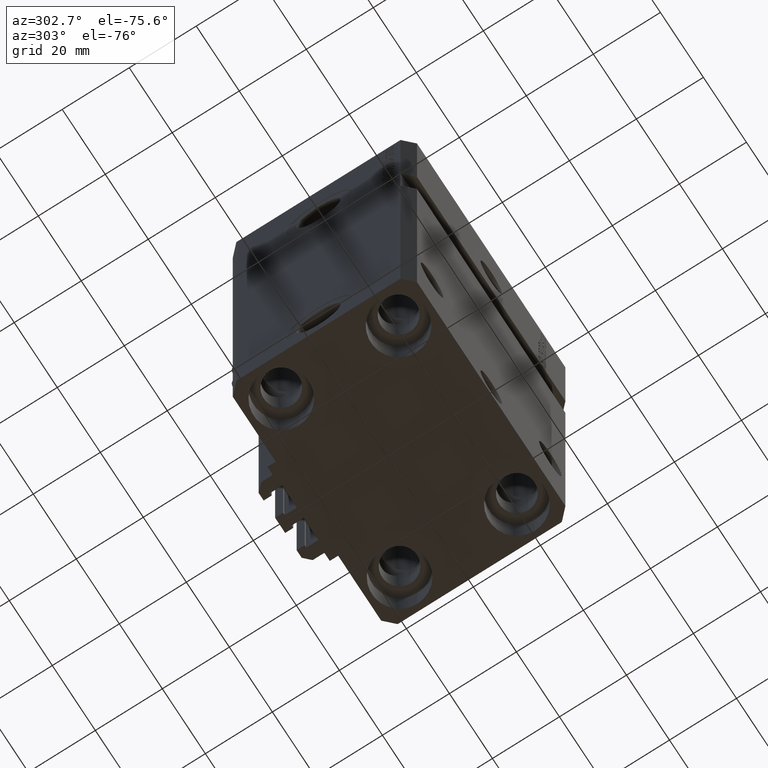
[diagram: clean part render]
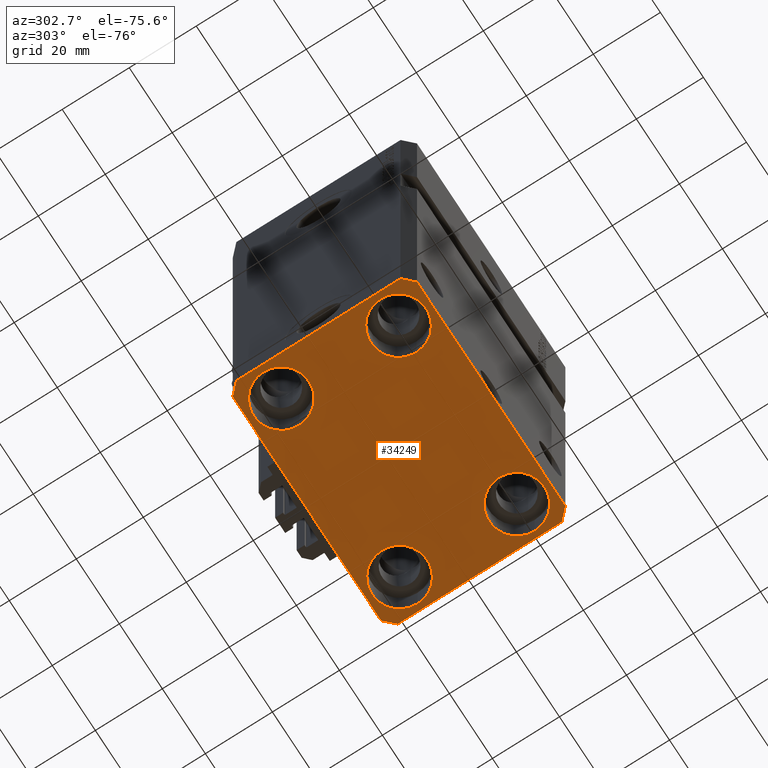
[diagram: same view with one face highlighted and labeled with its STEP entity id]
A machine part, auxiliary view. The second image highlights one B-rep face of the part: STEP entity #34249.
In plain terms, the highlighted planar face has unit normal (0, 0, 1).
Its self-contained STEP definition (entity closure, byte-faithful):
#521 = DIRECTION ( 'NONE',  ( 0.7071067811865483499, -0.7071067811865466846, 0.000000000000000000 ) ) ;
#713 = CARTESIAN_POINT ( 'NONE',  ( -35.75000000000000711, 17.50000000000000000, -140.0000000000000000 ) ) ;
#832 = CARTESIAN_POINT ( 'NONE',  ( 37.49999999999999289, -24.50000000000000000, -140.0000000000000000 ) ) ;
#2409 = ORIENTED_EDGE ( 'NONE', *, *, #21652, .T. ) ;
#2853 = DIRECTION ( 'NONE',  ( -0.000000000000000000, -0.000000000000000000, 1.000000000000000000 ) ) ;
#2880 = CARTESIAN_POINT ( 'NONE',  ( 34.50000000000056843, 27.50000000000000000, -140.0000000000000000 ) ) ;
#2974 = VECTOR ( 'NONE', #8332, 1000.000000000000000 ) ;
#3187 = AXIS2_PLACEMENT_3D ( 'NONE', #11316, #22224, #18583 ) ;
#4349 = AXIS2_PLACEMENT_3D ( 'NONE', #25385, #11084, #37488 ) ;
#4642 = CARTESIAN_POINT ( 'NONE',  ( -34.49999999999999289, 27.50000000000000000, -140.0000000000000000 ) ) ;
#5278 = ORIENTED_EDGE ( 'NONE', *, *, #11605, .T. ) ;
#5292 = VERTEX_POINT ( 'NONE', #22614 ) ;
#5302 = VERTEX_POINT ( 'NONE', #19915 ) ;
#6504 = ORIENTED_EDGE ( 'NONE', *, *, #16647, .T. ) ;
#6612 = VECTOR ( 'NONE', #27877, 1000.000000000000000 ) ;
#6691 = ORIENTED_EDGE ( 'NONE', *, *, #15108, .T. ) ;
#6996 = ORIENTED_EDGE ( 'NONE', *, *, #34841, .T. ) ;
#7282 = EDGE_CURVE ( 'NONE', #5292, #30397, #28578, .T. ) ;
#7935 = FACE_OUTER_BOUND ( 'NONE', #42834, .T. ) ;
#8150 = CARTESIAN_POINT ( 'NONE',  ( -37.49999999999999289, 24.50000000000000000, -140.0000000000000000 ) ) ;
#8332 = DIRECTION ( 'NONE',  ( 1.076236605503979380E-14, 1.000000000000000000, 0.000000000000000000 ) ) ;
#8588 = ORIENTED_EDGE ( 'NONE', *, *, #29916, .T. ) ;
#9039 = VECTOR ( 'NONE', #20889, 1000.000000000000000 ) ;
#9448 = LINE ( 'NONE', #2880, #27853 ) ;
#9471 = CARTESIAN_POINT ( 'NONE',  ( -27.50000000000000355, -17.50000000000000000, -140.0000000000000000 ) ) ;
#9500 = DIRECTION ( 'NONE',  ( 1.000000000000000000, 0.000000000000000000, 0.000000000000000000 ) ) ;
#9880 = CARTESIAN_POINT ( 'NONE',  ( 27.49999999999999645, 17.50000000000001066, -140.0000000000000000 ) ) ;
#10177 = DIRECTION ( 'NONE',  ( 1.000000000000000000, 0.000000000000000000, 0.000000000000000000 ) ) ;
#11084 = DIRECTION ( 'NONE',  ( -0.000000000000000000, -0.000000000000000000, 1.000000000000000000 ) ) ;
#11208 = CIRCLE ( 'NONE', #44469, 8.250000000000000000 ) ;
#11316 = CARTESIAN_POINT ( 'NONE',  ( 0.000000000000000000, 0.000000000000000000, -140.0000000000000000 ) ) ;
#11605 = EDGE_CURVE ( 'NONE', #23074, #40661, #39760, .T. ) ;
#11648 = CARTESIAN_POINT ( 'NONE',  ( -37.49999999999999289, -24.50000000000000000, -140.0000000000000000 ) ) ;
#13509 = AXIS2_PLACEMENT_3D ( 'NONE', #25976, #18457, #47525 ) ;
#13592 = VERTEX_POINT ( 'NONE', #4642 ) ;
#13652 = EDGE_LOOP ( 'NONE', ( #8588, #6996 ) ) ;
#13740 = AXIS2_PLACEMENT_3D ( 'NONE', #9471, #39017, #43364 ) ;
#14414 = CARTESIAN_POINT ( 'NONE',  ( 19.25000000000000000, -17.50000000000000000, -140.0000000000000000 ) ) ;
#14900 = ORIENTED_EDGE ( 'NONE', *, *, #32159, .F. ) ;
#15108 = EDGE_CURVE ( 'NONE', #46564, #47928, #29084, .T. ) ;
#15356 = CARTESIAN_POINT ( 'NONE',  ( 37.49999999999999289, -24.50000000000000000, -140.0000000000000000 ) ) ;
#15444 = FACE_BOUND ( 'NONE', #45085, .T. ) ;
#15772 = LINE ( 'NONE', #11648, #16306 ) ;
#15843 = LINE ( 'NONE', #832, #2974 ) ;
#16306 = VECTOR ( 'NONE', #521, 1000.000000000000000 ) ;
#16647 = EDGE_CURVE ( 'NONE', #40661, #23074, #11208, .T. ) ;
#17886 = EDGE_CURVE ( 'NONE', #47928, #46564, #29079, .T. ) ;
#18218 = CARTESIAN_POINT ( 'NONE',  ( -19.25000000000000355, -17.50000000000000000, -140.0000000000000000 ) ) ;
#18457 = DIRECTION ( 'NONE',  ( -0.000000000000000000, -0.000000000000000000, 1.000000000000000000 ) ) ;
#18583 = DIRECTION ( 'NONE',  ( 1.000000000000000000, 0.000000000000000000, -0.000000000000000000 ) ) ;
#19304 = FACE_BOUND ( 'NONE', #34411, .T. ) ;
#19465 = DIRECTION ( 'NONE',  ( -0.000000000000000000, -0.000000000000000000, 1.000000000000000000 ) ) ;
#19915 = CARTESIAN_POINT ( 'NONE',  ( 35.75000000000000711, -17.50000000000000000, -140.0000000000000000 ) ) ;
#19934 = VERTEX_POINT ( 'NONE', #8150 ) ;
#20083 = ORIENTED_EDGE ( 'NONE', *, *, #35370, .F. ) ;
#20330 = EDGE_CURVE ( 'NONE', #13592, #19934, #43412, .T. ) ;
#20342 = ORIENTED_EDGE ( 'NONE', *, *, #33520, .F. ) ;
#20716 = EDGE_CURVE ( 'NONE', #19934, #47400, #23773, .T. ) ;
#20889 = DIRECTION ( 'NONE',  ( -0.7071067811865471286, -0.7071067811865479058, 0.000000000000000000 ) ) ;
#21323 = DIRECTION ( 'NONE',  ( -0.000000000000000000, -0.000000000000000000, 1.000000000000000000 ) ) ;
#21652 = EDGE_CURVE ( 'NONE', #46768, #23293, #34618, .T. ) ;
#22224 = DIRECTION ( 'NONE',  ( 0.000000000000000000, 0.000000000000000000, 1.000000000000000000 ) ) ;
#22614 = CARTESIAN_POINT ( 'NONE',  ( -34.49999999999998579, -27.49999999999999645, -140.0000000000000000 ) ) ;
#23074 = VERTEX_POINT ( 'NONE', #713 ) ;
#23293 = VERTEX_POINT ( 'NONE', #45262 ) ;
#23450 = VERTEX_POINT ( 'NONE', #28520 ) ;
#23773 = LINE ( 'NONE', #45814, #45415 ) ;
#23795 = CARTESIAN_POINT ( 'NONE',  ( 27.50000000000000355, -17.50000000000000000, -140.0000000000000000 ) ) ;
#24095 = EDGE_CURVE ( 'NONE', #33087, #23450, #15843, .T. ) ;
#24210 = ORIENTED_EDGE ( 'NONE', *, *, #17886, .T. ) ;
#24733 = CARTESIAN_POINT ( 'NONE',  ( -27.50000000000000355, 17.50000000000000000, -140.0000000000000000 ) ) ;
#25036 = CARTESIAN_POINT ( 'NONE',  ( 37.50000000000051870, 24.49999999999995381, -140.0000000000000000 ) ) ;
#25385 = CARTESIAN_POINT ( 'NONE',  ( 27.49999999999999645, 17.50000000000001066, -140.0000000000000000 ) ) ;
#25619 = PLANE ( 'NONE',  #3187 ) ;
#25976 = CARTESIAN_POINT ( 'NONE',  ( -27.50000000000000355, 17.50000000000000000, -140.0000000000000000 ) ) ;
#27100 = EDGE_CURVE ( 'NONE', #39570, #13592, #9448, .T. ) ;
#27530 = ORIENTED_EDGE ( 'NONE', *, *, #20330, .F. ) ;
#27853 = VECTOR ( 'NONE', #38995, 1000.000000000000000 ) ;
#27871 = ORIENTED_EDGE ( 'NONE', *, *, #36778, .T. ) ;
#27877 = DIRECTION ( 'NONE',  ( 1.000000000000000000, 0.000000000000000000, 0.000000000000000000 ) ) ;
#28520 = CARTESIAN_POINT ( 'NONE',  ( 37.50000000000051870, 24.49999999999995381, -140.0000000000000000 ) ) ;
#28578 = LINE ( 'NONE', #39011, #6612 ) ;
#28867 = CARTESIAN_POINT ( 'NONE',  ( -34.49999999999999289, 27.50000000000000000, -140.0000000000000000 ) ) ;
#28960 = ORIENTED_EDGE ( 'NONE', *, *, #24095, .F. ) ;
#29079 = CIRCLE ( 'NONE', #4349, 8.249999999999992895 ) ;
#29084 = CIRCLE ( 'NONE', #43786, 8.249999999999992895 ) ;
#29722 = FACE_BOUND ( 'NONE', #30294, .T. ) ;
#29916 = EDGE_CURVE ( 'NONE', #33729, #5302, #44048, .T. ) ;
#30294 = EDGE_LOOP ( 'NONE', ( #27871, #2409 ) ) ;
#30397 = VERTEX_POINT ( 'NONE', #31420 ) ;
#30783 = DIRECTION ( 'NONE',  ( 0.000000000000000000, -1.000000000000000000, 0.000000000000000000 ) ) ;
#31252 = ORIENTED_EDGE ( 'NONE', *, *, #27100, .F. ) ;
#31420 = CARTESIAN_POINT ( 'NONE',  ( 34.49999999999999289, -27.49999999999999645, -140.0000000000000000 ) ) ;
#31535 = CARTESIAN_POINT ( 'NONE',  ( 35.74999999999999289, 17.50000000000001066, -140.0000000000000000 ) ) ;
#31866 = CARTESIAN_POINT ( 'NONE',  ( -19.25000000000000355, 17.50000000000000000, -140.0000000000000000 ) ) ;
#32159 = EDGE_CURVE ( 'NONE', #47400, #5292, #15772, .T. ) ;
#33087 = VERTEX_POINT ( 'NONE', #15356 ) ;
#33165 = CARTESIAN_POINT ( 'NONE',  ( 19.25000000000000000, 17.50000000000001066, -140.0000000000000000 ) ) ;
#33520 = EDGE_CURVE ( 'NONE', #30397, #33087, #35740, .T. ) ;
#33729 = VERTEX_POINT ( 'NONE', #14414 ) ;
#34249 = ADVANCED_FACE ( 'NONE', ( #29722, #45218, #19304, #15444, #7935 ), #25619, .F. ) ;
#34411 = EDGE_LOOP ( 'NONE', ( #24210, #6691 ) ) ;
#34478 = CARTESIAN_POINT ( 'NONE',  ( -27.50000000000000355, -17.50000000000000000, -140.0000000000000000 ) ) ;
#34618 = CIRCLE ( 'NONE', #13740, 8.250000000000000000 ) ;
#34841 = EDGE_CURVE ( 'NONE', #5302, #33729, #36477, .T. ) ;
#35370 = EDGE_CURVE ( 'NONE', #23450, #39570, #43444, .T. ) ;
#35740 = LINE ( 'NONE', #47114, #44182 ) ;
#36477 = CIRCLE ( 'NONE', #41918, 8.250000000000000000 ) ;
#36778 = EDGE_CURVE ( 'NONE', #23293, #46768, #46237, .T. ) ;
#37488 = DIRECTION ( 'NONE',  ( 1.000000000000000000, 0.000000000000000000, 0.000000000000000000 ) ) ;
#37702 = AXIS2_PLACEMENT_3D ( 'NONE', #34478, #19465, #45141 ) ;
#38042 = VECTOR ( 'NONE', #47067, 1000.000000000000114 ) ;
#38321 = DIRECTION ( 'NONE',  ( 1.000000000000000000, 0.000000000000000000, 0.000000000000000000 ) ) ;
#38995 = DIRECTION ( 'NONE',  ( -1.000000000000000000, 0.000000000000000000, 0.000000000000000000 ) ) ;
#39011 = CARTESIAN_POINT ( 'NONE',  ( -34.49999999999998579, -27.49999999999999645, -140.0000000000000000 ) ) ;
#39017 = DIRECTION ( 'NONE',  ( -0.000000000000000000, -0.000000000000000000, 1.000000000000000000 ) ) ;
#39420 = AXIS2_PLACEMENT_3D ( 'NONE', #46779, #42692, #9500 ) ;
#39570 = VERTEX_POINT ( 'NONE', #44247 ) ;
#39760 = CIRCLE ( 'NONE', #13509, 8.250000000000000000 ) ;
#40661 = VERTEX_POINT ( 'NONE', #31866 ) ;
#41472 = DIRECTION ( 'NONE',  ( -0.000000000000000000, -0.000000000000000000, 1.000000000000000000 ) ) ;
#41918 = AXIS2_PLACEMENT_3D ( 'NONE', #23795, #41472, #38321 ) ;
#42692 = DIRECTION ( 'NONE',  ( -0.000000000000000000, -0.000000000000000000, 1.000000000000000000 ) ) ;
#42834 = EDGE_LOOP ( 'NONE', ( #31252, #20083, #28960, #20342, #47450, #14900, #43025, #27530 ) ) ;
#43017 = DIRECTION ( 'NONE',  ( 0.7071067811865474617, 0.7071067811865474617, 0.000000000000000000 ) ) ;
#43025 = ORIENTED_EDGE ( 'NONE', *, *, #20716, .F. ) ;
#43364 = DIRECTION ( 'NONE',  ( 1.000000000000000000, 0.000000000000000000, 0.000000000000000000 ) ) ;
#43412 = LINE ( 'NONE', #28867, #9039 ) ;
#43444 = LINE ( 'NONE', #25036, #38042 ) ;
#43786 = AXIS2_PLACEMENT_3D ( 'NONE', #9880, #2853, #47172 ) ;
#44048 = CIRCLE ( 'NONE', #39420, 8.250000000000000000 ) ;
#44182 = VECTOR ( 'NONE', #43017, 1000.000000000000114 ) ;
#44247 = CARTESIAN_POINT ( 'NONE',  ( 34.50000000000056843, 27.50000000000000000, -140.0000000000000000 ) ) ;
#44469 = AXIS2_PLACEMENT_3D ( 'NONE', #24733, #21323, #10177 ) ;
#45085 = EDGE_LOOP ( 'NONE', ( #5278, #6504 ) ) ;
#45141 = DIRECTION ( 'NONE',  ( 1.000000000000000000, 0.000000000000000000, 0.000000000000000000 ) ) ;
#45218 = FACE_BOUND ( 'NONE', #13652, .T. ) ;
#45262 = CARTESIAN_POINT ( 'NONE',  ( -35.75000000000000711, -17.50000000000000000, -140.0000000000000000 ) ) ;
#45415 = VECTOR ( 'NONE', #30783, 1000.000000000000000 ) ;
#45814 = CARTESIAN_POINT ( 'NONE',  ( -37.49999999999999289, 24.50000000000000000, -140.0000000000000000 ) ) ;
#46237 = CIRCLE ( 'NONE', #37702, 8.250000000000000000 ) ;
#46564 = VERTEX_POINT ( 'NONE', #31535 ) ;
#46700 = CARTESIAN_POINT ( 'NONE',  ( -37.49999999999999289, -24.50000000000000000, -140.0000000000000000 ) ) ;
#46768 = VERTEX_POINT ( 'NONE', #18218 ) ;
#46779 = CARTESIAN_POINT ( 'NONE',  ( 27.50000000000000355, -17.50000000000000000, -140.0000000000000000 ) ) ;
#47067 = DIRECTION ( 'NONE',  ( -0.7071067811865356934, 0.7071067811865594521, 0.000000000000000000 ) ) ;
#47114 = CARTESIAN_POINT ( 'NONE',  ( 34.49999999999999289, -27.49999999999999645, -140.0000000000000000 ) ) ;
#47172 = DIRECTION ( 'NONE',  ( 1.000000000000000000, 0.000000000000000000, 0.000000000000000000 ) ) ;
#47400 = VERTEX_POINT ( 'NONE', #46700 ) ;
#47450 = ORIENTED_EDGE ( 'NONE', *, *, #7282, .F. ) ;
#47525 = DIRECTION ( 'NONE',  ( 1.000000000000000000, 0.000000000000000000, 0.000000000000000000 ) ) ;
#47928 = VERTEX_POINT ( 'NONE', #33165 ) ;